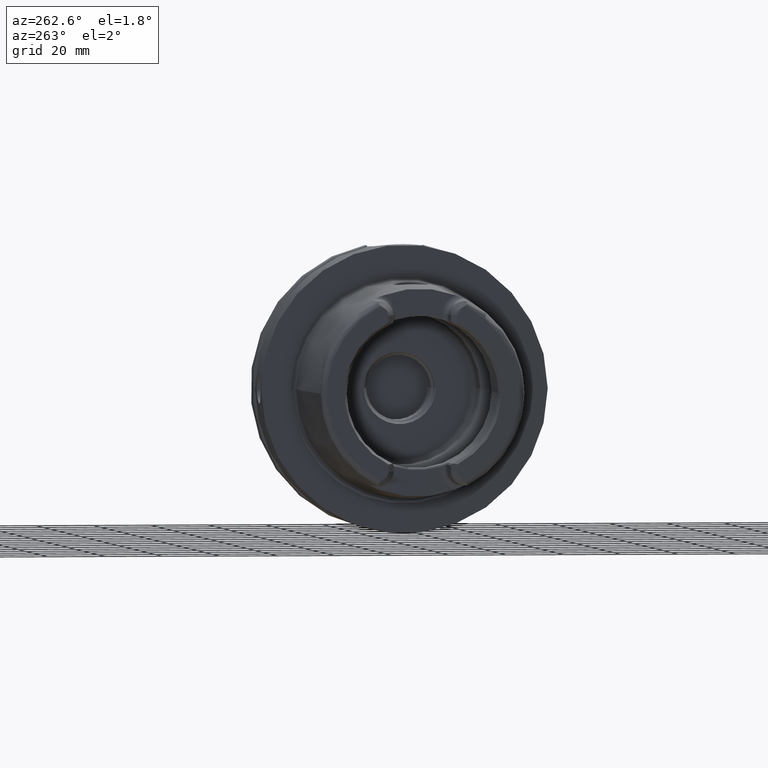
[diagram: clean part render]
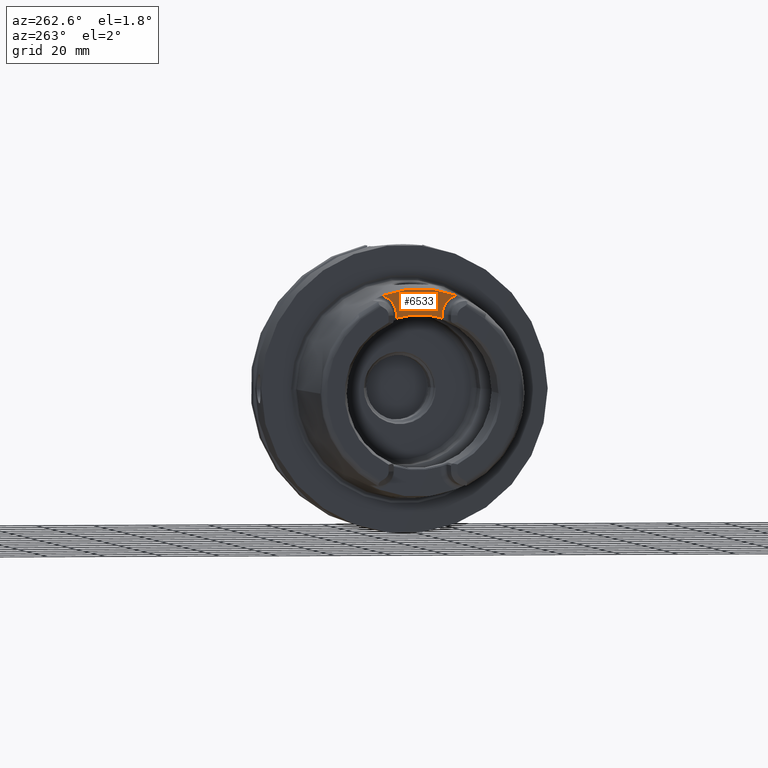
[diagram: same view with one face highlighted and labeled with its STEP entity id]
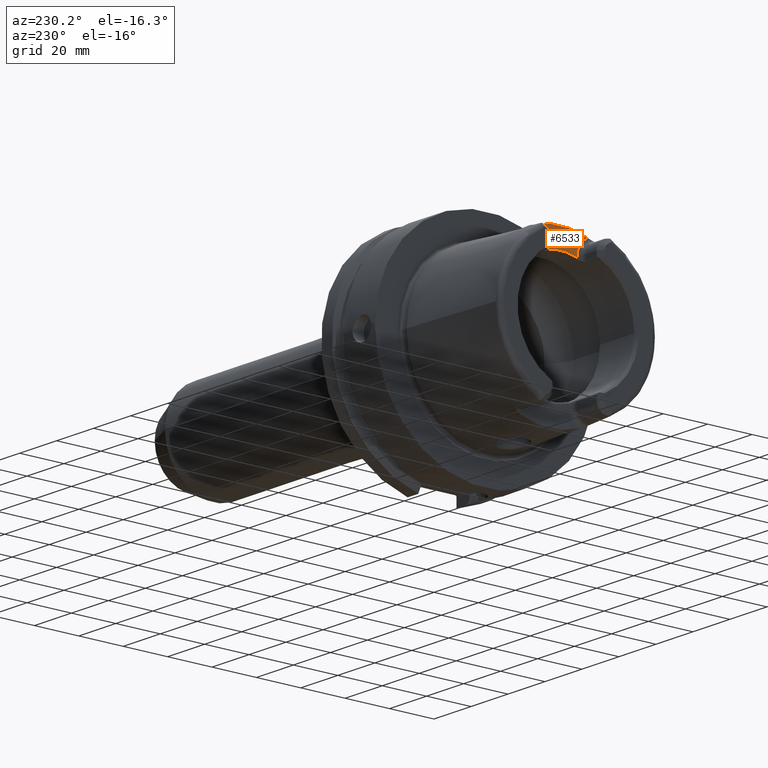
[diagram: same view with one face highlighted and labeled with its STEP entity id]
A machine part, auxiliary view. The second image highlights one B-rep face of the part: STEP entity #6533.
A second angle (auxiliary view) of the same face is appended — the face is thin or edge-on in the first view.
In plain terms, the highlighted planar face has unit normal (-1, 0, 0).
Its self-contained STEP definition (entity closure, byte-faithful):
#9=CARTESIAN_POINT('',(-4.E1,0.E0,0.E0));
#10=DIRECTION('',(1.E0,0.E0,0.E0));
#11=DIRECTION('',(0.E0,3.574556786365E-1,9.339301032789E-1));
#12=AXIS2_PLACEMENT_3D('',#9,#10,#11);
#2728=DIRECTION('',(0.E0,5.174062213620E-12,1.E0));
#2729=VECTOR('',#2728,1.199558594508E0);
#2730=CARTESIAN_POINT('',(-4.E1,8.009999999994E0,2.576044140549E1));
#2731=LINE('',#2730,#2729);
#2732=CARTESIAN_POINT('',(-4.E1,1.501E1,2.696E1));
#2733=DIRECTION('',(-1.E0,0.E0,0.E0));
#2734=DIRECTION('',(0.E0,-1.E0,0.E0));
#2735=AXIS2_PLACEMENT_3D('',#2732,#2733,#2734);
#2737=CARTESIAN_POINT('',(-4.E1,-1.501E1,2.696E1));
#2738=DIRECTION('',(-1.E0,0.E0,0.E0));
#2739=DIRECTION('',(0.E0,3.057634963159E-1,9.521074962002E-1));
#2740=AXIS2_PLACEMENT_3D('',#2737,#2738,#2739);
#2742=DIRECTION('',(0.E0,6.866664706538E-12,-1.E0));
#2743=VECTOR('',#2742,1.199558594503E0);
#2744=CARTESIAN_POINT('',(-4.E1,-8.010000000001E0,2.695999999999E1));
#2745=LINE('',#2744,#2743);
#2746=CARTESIAN_POINT('',(-4.E1,8.009999999994E0,2.576044140549E1));
#2747=CARTESIAN_POINT('',(-4.E1,7.269616392493E0,2.599521452766E1));
#2748=CARTESIAN_POINT('',(-4.E1,5.774680607733E0,2.639793295020E1));
#2749=CARTESIAN_POINT('',(-4.E1,3.481759859025E0,2.680464578135E1));
#2750=CARTESIAN_POINT('',(-4.E1,1.163574268407E0,2.700848033442E1));
#2751=CARTESIAN_POINT('',(-4.E1,-1.163574229637E0,2.700848033529E1));
#2752=CARTESIAN_POINT('',(-4.E1,-3.481759771637E0,2.680464579107E1));
#2753=CARTESIAN_POINT('',(-4.E1,-5.774680487919E0,2.639793297771E1));
#2754=CARTESIAN_POINT('',(-4.E1,-7.269616343063E0,2.599521454333E1));
#2755=CARTESIAN_POINT('',(-4.E1,-8.009999999993E0,2.576044140549E1));
#2941=CARTESIAN_POINT('',(-4.E1,8.01E0,2.696E1));
#2943=VERTEX_POINT('',#2941);
#2945=CARTESIAN_POINT('',(-4.E1,-8.01E0,2.696E1));
#2947=VERTEX_POINT('',#2945);
#2949=CARTESIAN_POINT('',(-4.E1,1.286965552579E1,3.362475247340E1));
#2950=VERTEX_POINT('',#2949);
#2955=CARTESIAN_POINT('',(-4.E1,-1.286965552579E1,3.362475247340E1));
#2956=VERTEX_POINT('',#2955);
#2997=CARTESIAN_POINT('',(-4.E1,8.009999999994E0,2.576044140549E1));
#2998=VERTEX_POINT('',#2997);
#2999=CARTESIAN_POINT('',(-4.E1,-8.009999999993E0,2.576044140549E1));
#3000=VERTEX_POINT('',#2999);
#6518=CARTESIAN_POINT('',(-4.E1,0.E0,0.E0));
#6519=DIRECTION('',(-1.E0,0.E0,0.E0));
#6520=DIRECTION('',(0.E0,0.E0,1.E0));
#6521=AXIS2_PLACEMENT_3D('',#6518,#6519,#6520);
#6522=PLANE('',#6521);
#6523=ORIENTED_EDGE('',*,*,#3571,.T.);
#6524=ORIENTED_EDGE('',*,*,#3589,.T.);
#6525=ORIENTED_EDGE('',*,*,#3356,.T.);
#6527=ORIENTED_EDGE('',*,*,#6526,.T.);
#6529=ORIENTED_EDGE('',*,*,#6528,.T.);
#6530=ORIENTED_EDGE('',*,*,#6509,.F.);
#6531=EDGE_LOOP('',(#6523,#6524,#6525,#6527,#6529,#6530));
#6532=FACE_OUTER_BOUND('',#6531,.F.);
#6533=ADVANCED_FACE('',(#6532),#6522,.T.);
#13=CIRCLE('',#12,3.60035E1);
#2736=CIRCLE('',#2735,7.E0);
#2741=CIRCLE('',#2740,7.E0);
#2756=B_SPLINE_CURVE_WITH_KNOTS('',3,(#2746,#2747,#2748,#2749,#2750,#2751,#2752,
#2753,#2754,#2755),.UNSPECIFIED.,.F.,.F.,(4,1,1,1,1,1,1,4),(0.E0,
1.428571428571E-1,2.857142857143E-1,4.285714285714E-1,5.714285714286E-1,
7.142857142857E-1,8.571428571429E-1,1.E0),.UNSPECIFIED.);
#3356=EDGE_CURVE('',#2950,#2956,#13,.T.);
#3571=EDGE_CURVE('',#2998,#2943,#2731,.T.);
#3589=EDGE_CURVE('',#2943,#2950,#2736,.T.);
#6509=EDGE_CURVE('',#2998,#3000,#2756,.T.);
#6526=EDGE_CURVE('',#2956,#2947,#2741,.T.);
#6528=EDGE_CURVE('',#2947,#3000,#2745,.T.);